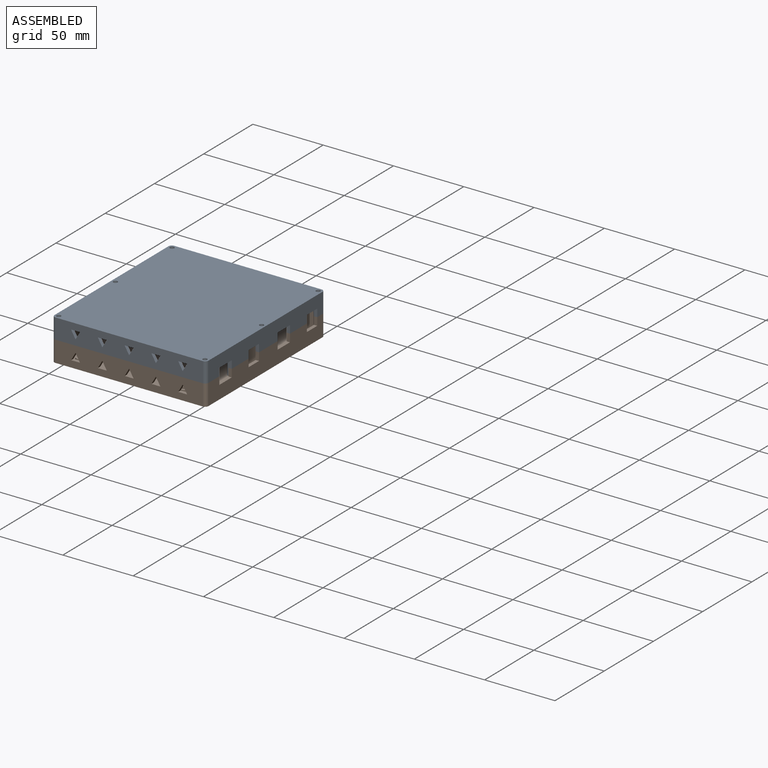
[diagram: assembled view]
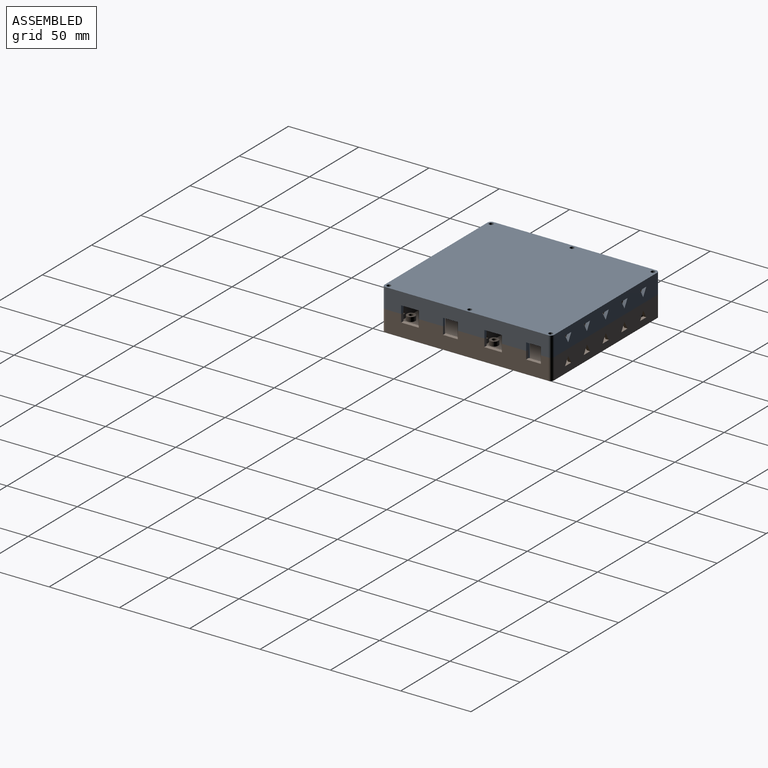
[diagram: assembled view, second angle]
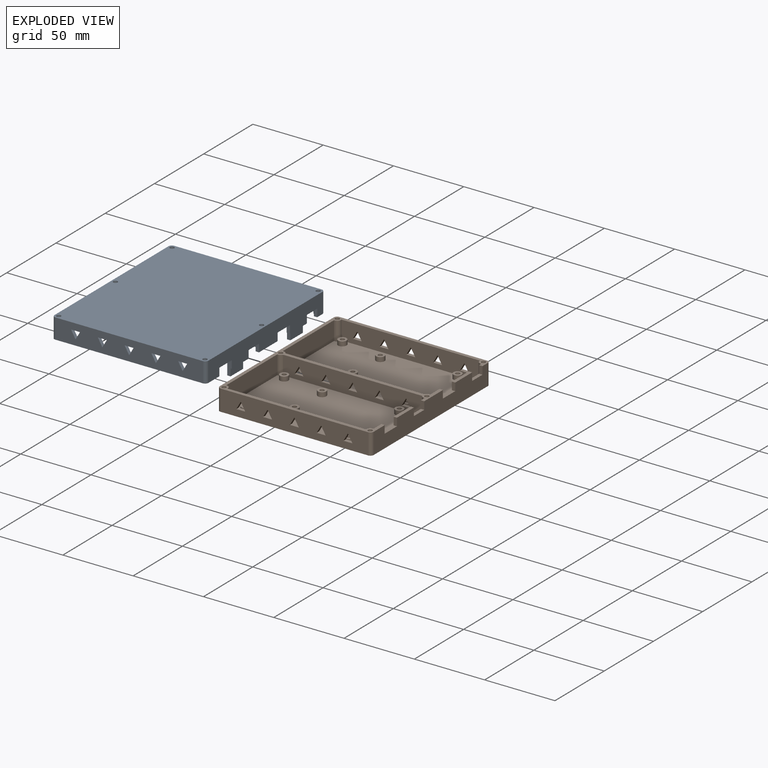
[diagram: exploded view]
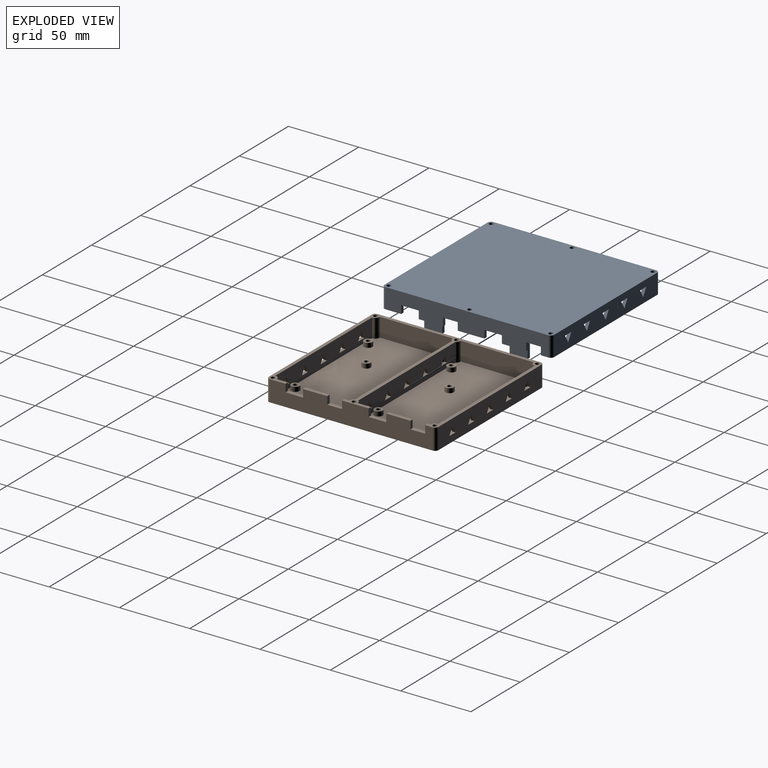
[diagram: exploded view, second angle]
ASSEMBLY  parts=2 mates=3
PART A: 137 faces, bbox 109.5x120.6x20.6 mm
  f0: plane 25.93x12.7mm, normal (-1,0,0), area 260.3mm2, adj f1,f10,f59,f60,f61,f73,f77,f133
  f1: plane 104.78x56.72mm, normal (0,0,1), area 5803.9mm2, adj f0,f7,f8,f46,f48,f50,f66,f67
  f2: plane 22.71x12.7mm, normal (-1,0,0), area 219.3mm2, adj f3,f14,f21,f25,f28,f29,f30,f129
  f3: plane 104.78x56.72mm, normal (0,0,1), area 5803.9mm2, adj f2,f5,f6,f13,f16,f17,f18,f19
  f4: plane 104.78x14.29mm, normal (0,1,0), area 1409.7mm2, adj f11,f25,f26,f27,f112,f113,f114,f115
  f5: plane 98.43x12.7mm, normal (0,-1,0), area 1162.7mm2, adj f3,f18,f19,f25,f112,f113,f114,f115
  f6: plane 98.98x12.7mm, normal (0,1,0), area 1169.7mm2, adj f3,f10,f76,f78,f97,f98,f99,f100
  f7: plane 98.43x12.7mm, normal (0,1,0), area 1162.7mm2, adj f1,f68,f69,f75,f82,f83,f84,f85
  f8: plane 98.98x12.7mm, normal (0,-1,0), area 1169.7mm2, adj f1,f10,f77,f79,f97,f98,f99,f100
  f9: plane 104.78x14.29mm, normal (0,-1,0), area 1409.7mm2, adj f11,f62,f63,f75,f82,f83,f84,f85
  f10: plane 109.54x22.86mm, normal (0,0,1), area 347.9mm2, adj f0,f6,f8,f12,f13,f15,f22,f31
  f11: plane 120.62x109.54mm, normal (0,0,-1), area 13164.6mm2, adj f4,f9,f12,f15,f23,f24,f26,f27
  f12: plane 115.85x14.29mm, normal (-1,0,0), area 759.9mm2, adj f10,f11,f25,f27,f34,f35,f36,f37
  f13: plane 52x12.7mm, normal (1,0,0), area 212.7mm2, adj f3,f10,f16,f25,f34,f35,f36,f37
  f14: plane 17.21x2.38mm, normal (0,0,1), area 41mm2, adj f2,f15,f22,f28,f32,f127
  f15: plane 115.85x14.29mm, normal (1,0,0), area 1401.1mm2, adj f10,f11,f14,f25,f26,f28,f29,f30
  f16: plane 12.7x0.4mm, normal (0,-1,0), area 5mm2, adj f3,f13,f17,f25
  f17: cylinder r=2.78mm len=12.7mm, axis (0,0,-1), area 55.4mm2, adj f3,f16,f18,f25
  f18: plane 12.7x0.4mm, normal (1,0,0), area 5mm2, adj f3,f5,f17,f25
  f19: plane 12.7x0.4mm, normal (-1,0,0), area 5mm2, adj f3,f5,f20,f25
  f20: cylinder r=2.78mm len=12.7mm, axis (0,0,-1), area 55.4mm2, adj f3,f19,f21,f25
  f21: plane 12.7x0.4mm, normal (0,-1,0), area 5mm2, adj f2,f3,f20,f25
  f22: plane 16.59x12.7mm, normal (-1,0,0), area 152.7mm2, adj f3,f10,f14,f31,f32,f33,f78,f128
  f23: cylinder r=1.5mm len=14.29mm, axis (0,0,-1), area 134.7mm2, adj f11,f25
  f24: cylinder r=1.5mm len=14.29mm, axis (0,0,-1), area 134.7mm2, adj f11,f25
  f25: plane 109.54x13.51mm, normal (0,0,1), area 309.8mm2, adj f2,f4,f5,f12,f13,f15,f16,f17
  f26: cylinder r=2.38mm len=14.29mm, axis (0,0,1), area 53.4mm2, adj f4,f11,f15,f25
  f27: cylinder r=2.38mm len=14.29mm, axis (0,0,-1), area 53.4mm2, adj f4,f11,f12,f25
  f28: plane 5.52x2.38mm, normal (0,1,0), area 13.2mm2, adj f2,f14,f15,f30
  f29: plane 5.52x2.38mm, normal (0,-1,0), area 13.2mm2, adj f2,f15,f25,f30
  f30: plane 12.5x2.38mm, normal (0,0,1), area 29.8mm2, adj f2,f15,f28,f29
  f31: plane 5.52x2.38mm, normal (0,1,0), area 13.2mm2, adj f10,f15,f22,f33
  f32: plane 5.52x2.38mm, normal (0,-1,0), area 13.2mm2, adj f14,f15,f22,f33
  f33: plane 10.5x2.38mm, normal (0,0,1), area 25mm2, adj f15,f22,f31,f32
  f34: plane 10.8x2.38mm, normal (0,-0.98,-0.17), area 26.1mm2, adj f12,f13,f25,f35
  f35: plane 41.91x2.38mm, normal (0,0,1), area 99.8mm2, adj f12,f13,f34,f36
  f36: plane 10.8x2.38mm, normal (0,0.98,-0.17), area 26.1mm2, adj f10,f12,f13,f35
  f37: cylinder r=1.59mm len=3.18mm, axis (-1,0,0), area 23.8mm2, adj f12,f13
  f38: cylinder r=1.59mm len=3.18mm, axis (-1,0,0), area 23.8mm2, adj f12,f13
  f39: cylinder r=3mm len=6mm, axis (0,0,-1), area 59.8mm2, adj f3,f40
  f40: plane 6x6mm, normal (0,0,1), area 28.3mm2, adj f39
  f41: cylinder r=3mm len=6mm, axis (0,0,-1), area 59.8mm2, adj f3,f42
  f42: plane 6x6mm, normal (0,0,1), area 28.3mm2, adj f41
  f43: cylinder r=3mm len=6mm, axis (0,0,-1), area 59.8mm2, adj f3,f44
  f44: plane 6x6mm, normal (0,0,1), area 28.3mm2, adj f43
  f45: plane 6x6mm, normal (0,0,1), area 28.3mm2, adj f46
  f46: cylinder r=3mm len=6mm, axis (0,0,-1), area 59.8mm2, adj f1,f45
  f47: plane 6x6mm, normal (0,0,1), area 28.3mm2, adj f48
  f48: cylinder r=3mm len=6mm, axis (0,0,-1), area 59.8mm2, adj f1,f47
  f49: plane 6x6mm, normal (0,0,1), area 28.3mm2, adj f50
  f50: cylinder r=3mm len=6mm, axis (0,0,-1), area 59.8mm2, adj f1,f49
  f51: cylinder r=1.59mm len=3.18mm, axis (-1,0,0), area 23.8mm2, adj f12,f74
  f52: cylinder r=1.59mm len=3.18mm, axis (-1,0,0), area 23.8mm2, adj f12,f74
  f53: plane 10.8x2.38mm, normal (0,0.98,-0.17), area 26.1mm2, adj f12,f54,f74,f75
  f54: plane 41.91x2.38mm, normal (0,0,1), area 99.8mm2, adj f12,f53,f55,f74
  f55: plane 10.8x2.38mm, normal (0,-0.98,-0.17), area 26.1mm2, adj f10,f12,f54,f74
  f56: plane 10.5x2.38mm, normal (0,0,1), area 25mm2, adj f15,f57,f58,f72
  f57: plane 5.52x2.38mm, normal (0,-1,0), area 13.2mm2, adj f15,f56,f72,f73
  f58: plane 5.52x2.38mm, normal (0,1,0), area 13.2mm2, adj f15,f56,f72,f75
  f59: plane 12.5x2.38mm, normal (0,0,1), area 29.8mm2, adj f0,f15,f60,f61
  f60: plane 5.52x2.38mm, normal (0,-1,0), area 13.2mm2, adj f0,f10,f15,f59
  f61: plane 5.52x2.38mm, normal (0,1,0), area 13.2mm2, adj f0,f15,f59,f73
  f62: cylinder r=2.38mm len=14.29mm, axis (0,0,1), area 53.4mm2, adj f9,f11,f12,f75
  f63: cylinder r=2.38mm len=14.29mm, axis (0,0,-1), area 53.4mm2, adj f9,f11,f15,f75
  f64: cylinder r=1.5mm len=14.29mm, axis (0,0,-1), area 134.7mm2, adj f11,f75
  f65: cylinder r=1.5mm len=14.29mm, axis (0,0,-1), area 134.7mm2, adj f11,f75
  f66: plane 12.7x0.4mm, normal (0,1,0), area 5mm2, adj f1,f67,f74,f75
  f67: cylinder r=2.78mm len=12.7mm, axis (0,0,-1), area 55.4mm2, adj f1,f66,f68,f75
  f68: plane 12.7x0.4mm, normal (1,0,0), area 5mm2, adj f1,f7,f67,f75
  f69: plane 12.7x0.4mm, normal (-1,0,0), area 5mm2, adj f1,f7,f70,f75
  f70: cylinder r=2.78mm len=12.7mm, axis (0,0,-1), area 55.4mm2, adj f1,f69,f71,f75
  f71: plane 12.7x0.4mm, normal (0,1,0), area 5mm2, adj f1,f70,f72,f75
  f72: plane 13.37x12.7mm, normal (-1,0,0), area 111.8mm2, adj f1,f56,f57,f58,f71,f73,f75,f135
  f73: plane 17.21x2.38mm, normal (0,0,1), area 41mm2, adj f0,f15,f57,f61,f72,f132
  f74: plane 52x12.7mm, normal (1,0,0), area 212.7mm2, adj f1,f10,f51,f52,f53,f54,f55,f66
  f75: plane 109.54x11.69mm, normal (0,0,1), area 296.1mm2, adj f7,f9,f12,f15,f53,f58,f62,f63
  f76: cylinder r=2.78mm len=12.7mm, axis (0,0,1), area 44.6mm2, adj f3,f6,f10,f13
  f77: cylinder r=2.78mm len=12.7mm, axis (0,0,1), area 44.6mm2, adj f0,f1,f8,f10
  f78: cylinder r=2.78mm len=12.7mm, axis (0,0,1), area 44.6mm2, adj f3,f6,f10,f22
  f79: cylinder r=2.78mm len=12.7mm, axis (0,0,1), area 44.6mm2, adj f1,f8,f10,f74
  f80: cylinder r=1.5mm len=14.29mm, axis (0,0,1), area 134.7mm2, adj f10,f11
  f81: cylinder r=1.5mm len=14.29mm, axis (0,0,1), area 134.7mm2, adj f10,f11
  f82: plane 5.5x3.18mm, normal (-0.87,0,-0.5), area 15.1mm2, adj f7,f9,f83,f84
  f83: plane 5.5x3.18mm, normal (0.87,0,-0.5), area 15.1mm2, adj f7,f9,f82,f84
  f84: plane 6.35x2.38mm, normal (0,0,1), area 15.1mm2, adj f7,f9,f82,f83
  f85: plane 5.5x3.18mm, normal (-0.87,0,-0.5), area 15.1mm2, adj f7,f9,f86,f87
  f86: plane 5.5x3.18mm, normal (0.87,0,-0.5), area 15.1mm2, adj f7,f9,f85,f87
  f87: plane 6.35x2.38mm, normal (0,0,1), area 15.1mm2, adj f7,f9,f85,f86
  f88: plane 5.5x3.18mm, normal (-0.87,0,-0.5), area 15.1mm2, adj f7,f9,f89,f90
  f89: plane 5.5x3.18mm, normal (0.87,0,-0.5), area 15.1mm2, adj f7,f9,f88,f90
  f90: plane 6.35x2.38mm, normal (0,0,1), area 15.1mm2, adj f7,f9,f88,f89
  f91: plane 5.5x3.18mm, normal (-0.87,0,-0.5), area 15.1mm2, adj f7,f9,f92,f93
  f92: plane 5.5x3.18mm, normal (0.87,0,-0.5), area 15.1mm2, adj f7,f9,f91,f93
  f93: plane 6.35x2.38mm, normal (0,0,1), area 15.1mm2, adj f7,f9,f91,f92
  f94: plane 5.5x3.18mm, normal (-0.87,0,-0.5), area 15.1mm2, adj f7,f9,f95,f96
  f95: plane 5.5x3.18mm, normal (0.87,0,-0.5), area 15.1mm2, adj f7,f9,f94,f96
  f96: plane 6.35x2.38mm, normal (0,0,1), area 15.1mm2, adj f7,f9,f94,f95
  f97: plane 5.5x3.18mm, normal (-0.87,0,-0.5), area 15.3mm2, adj f6,f8,f98,f99
  f98: plane 5.5x3.18mm, normal (0.87,0,-0.5), area 15.3mm2, adj f6,f8,f97,f99
  f99: plane 6.35x2.42mm, normal (0,0,1), area 15.3mm2, adj f6,f8,f97,f98
  f100: plane 5.5x3.18mm, normal (-0.87,0,-0.5), area 15.3mm2, adj f6,f8,f101,f102
  f101: plane 5.5x3.18mm, normal (0.87,0,-0.5), area 15.3mm2, adj f6,f8,f100,f102
  f102: plane 6.35x2.42mm, normal (0,0,1), area 15.3mm2, adj f6,f8,f100,f101
  f103: plane 5.5x3.18mm, normal (-0.87,0,-0.5), area 15.3mm2, adj f6,f8,f104,f105
  f104: plane 5.5x3.18mm, normal (0.87,0,-0.5), area 15.3mm2, adj f6,f8,f103,f105
  f105: plane 6.35x2.42mm, normal (0,0,1), area 15.3mm2, adj f6,f8,f103,f104
  f106: plane 5.5x3.18mm, normal (-0.87,0,-0.5), area 15.3mm2, adj f6,f8,f107,f108
  f107: plane 5.5x3.18mm, normal (0.87,0,-0.5), area 15.3mm2, adj f6,f8,f106,f108
  f108: plane 6.35x2.42mm, normal (0,0,1), area 15.3mm2, adj f6,f8,f106,f107
  f109: plane 5.5x3.18mm, normal (-0.87,0,-0.5), area 15.3mm2, adj f6,f8,f110,f111
  f110: plane 5.5x3.18mm, normal (0.87,0,-0.5), area 15.3mm2, adj f6,f8,f109,f111
  f111: plane 6.35x2.42mm, normal (0,0,1), area 15.3mm2, adj f6,f8,f109,f110
  f112: plane 6.35x2.38mm, normal (0,0,1), area 15.1mm2, adj f4,f5,f113,f114
  f113: plane 5.5x3.18mm, normal (0.87,0,-0.5), area 15.1mm2, adj f4,f5,f112,f114
  f114: plane 5.5x3.18mm, normal (-0.87,0,-0.5), area 15.1mm2, adj f4,f5,f112,f113
  f115: plane 6.35x2.38mm, normal (0,0,1), area 15.1mm2, adj f4,f5,f116,f117
  f116: plane 5.5x3.18mm, normal (0.87,0,-0.5), area 15.1mm2, adj f4,f5,f115,f117
  f117: plane 5.5x3.18mm, normal (-0.87,0,-0.5), area 15.1mm2, adj f4,f5,f115,f116
  f118: plane 6.35x2.38mm, normal (0,0,1), area 15.1mm2, adj f4,f5,f119,f120
  f119: plane 5.5x3.18mm, normal (0.87,0,-0.5), area 15.1mm2, adj f4,f5,f118,f120
  f120: plane 5.5x3.18mm, normal (-0.87,0,-0.5), area 15.1mm2, adj f4,f5,f118,f119
  f121: plane 6.35x2.38mm, normal (0,0,1), area 15.1mm2, adj f4,f5,f122,f123
  f122: plane 5.5x3.18mm, normal (0.87,0,-0.5), area 15.1mm2, adj f4,f5,f121,f123
  f123: plane 5.5x3.18mm, normal (-0.87,0,-0.5), area 15.1mm2, adj f4,f5,f121,f122
  f124: plane 6.35x2.38mm, normal (0,0,1), area 15.1mm2, adj f4,f5,f125,f126
  f125: plane 5.5x3.18mm, normal (0.87,0,-0.5), area 15.1mm2, adj f4,f5,f124,f126
  f126: plane 5.5x3.18mm, normal (-0.87,0,-0.5), area 15.1mm2, adj f4,f5,f124,f125
  f127: plane 12.7x6.35mm, normal (1,0,0), area 80.6mm2, adj f14,f128,f129,f131
  f128: plane 19.05x2.38mm, normal (0,-1,0), area 45.4mm2, adj f3,f22,f127,f130,f131
  f129: plane 19.05x2.38mm, normal (0,1,0), area 45.4mm2, adj f2,f3,f127,f130,f131
  f130: plane 19.05x12.7mm, normal (-1,0,0), area 241.9mm2, adj f3,f128,f129,f131
  f131: plane 12.7x2.38mm, normal (0,0,1), area 30.2mm2, adj f127,f128,f129,f130
  f132: plane 12.7x6.35mm, normal (1,0,0), area 80.6mm2, adj f73,f133,f135,f136
  f133: plane 19.05x2.38mm, normal (0,1,0), area 45.4mm2, adj f0,f1,f132,f134,f136
  f134: plane 19.05x12.7mm, normal (-1,0,0), area 241.9mm2, adj f1,f133,f135,f136
  f135: plane 19.05x2.38mm, normal (0,-1,0), area 45.4mm2, adj f1,f72,f132,f134,f136
  f136: plane 12.7x2.38mm, normal (0,0,1), area 30.2mm2, adj f132,f133,f134,f135
PART B: 149 faces, bbox 109.5x120.6x14.9 mm
  f0: plane 104.78x14.92mm, normal (0,1,0), area 1476.2mm2, adj f6,f7,f22,f23,f134,f135,f136,f137
  f1: plane 98.43x13.34mm, normal (0,-1,0), area 1225.2mm2, adj f6,f8,f14,f15,f134,f135,f136,f137
  f2: plane 98.98x13.34mm, normal (0,1,0), area 1232.6mm2, adj f6,f8,f98,f101,f119,f120,f121,f122
  f3: plane 98.43x13.34mm, normal (0,1,0), area 1225.2mm2, adj f6,f86,f92,f93,f104,f105,f106,f107
  f4: plane 98.98x13.34mm, normal (0,-1,0), area 1232.6mm2, adj f6,f86,f99,f100,f119,f120,f121,f122
  f5: plane 104.78x14.92mm, normal (0,-1,0), area 1476.2mm2, adj f6,f7,f84,f85,f104,f105,f106,f107
  f6: plane 120.62x109.54mm, normal (0,0,1), area 1135.2mm2, adj f0,f1,f2,f3,f4,f5,f10,f11
  f7: plane 120.62x109.54mm, normal (0,0,-1), area 13164.6mm2, adj f0,f5,f10,f11,f20,f21,f22,f23
  f8: plane 104.78x56.72mm, normal (0,0,1), area 5749.3mm2, adj f1,f2,f12,f13,f14,f15,f16,f17
  f9: plane 17.21x2.38mm, normal (0,0,1), area 41mm2, adj f10,f18,f24,f28
  f10: plane 115.85x14.92mm, normal (1,0,0), area 1474.7mm2, adj f6,f7,f9,f22,f24,f25,f26,f27
  f11: plane 115.85x14.92mm, normal (-1,0,0), area 1728.8mm2, adj f6,f7,f23,f84
  f12: plane 13.34x0.4mm, normal (0,-1,0), area 5.3mm2, adj f6,f8,f13,f19
  f13: cylinder r=2.78mm len=13.34mm, axis (0,0,-1), area 58.2mm2, adj f6,f8,f12,f14
  f14: plane 13.34x0.4mm, normal (1,0,0), area 5.3mm2, adj f1,f6,f8,f13
  f15: plane 13.34x0.4mm, normal (-1,0,0), area 5.3mm2, adj f1,f6,f8,f16
  f16: cylinder r=2.78mm len=13.34mm, axis (0,0,-1), area 58.2mm2, adj f6,f8,f15,f17
  f17: plane 13.34x0.4mm, normal (0,-1,0), area 5.3mm2, adj f6,f8,f16,f18
  f18: plane 52x13.34mm, normal (-1,0,0), area 566.4mm2, adj f6,f8,f9,f17,f24,f25,f26,f27
  f19: plane 52x13.34mm, normal (1,0,0), area 693.4mm2, adj f6,f8,f12,f98
  f20: cylinder r=1.5mm len=14.92mm, axis (0,0,-1), area 140.6mm2, adj f6,f7
  f21: cylinder r=1.5mm len=14.92mm, axis (0,0,-1), area 140.6mm2, adj f6,f7
  f22: cylinder r=2.38mm len=14.92mm, axis (0,0,1), area 55.8mm2, adj f0,f6,f7,f10
  f23: cylinder r=2.38mm len=14.92mm, axis (0,0,-1), area 55.8mm2, adj f0,f6,f7,f11
  f24: plane 5.52x2.38mm, normal (0,1,0), area 13.2mm2, adj f9,f10,f18,f26
  f25: plane 5.52x2.38mm, normal (0,-1,0), area 13.2mm2, adj f6,f10,f18,f26
  f26: plane 10.5x2.38mm, normal (0,0,1), area 25mm2, adj f10,f18,f24,f25
  f27: plane 5.52x2.38mm, normal (0,1,0), area 13.2mm2, adj f6,f10,f18,f29
  f28: plane 5.52x2.38mm, normal (0,-1,0), area 13.2mm2, adj f9,f10,f18,f29
  f29: plane 12.5x2.38mm, normal (0,0,1), area 29.8mm2, adj f10,f18,f27,f28
  f30: cylinder r=1.5mm len=3.18mm, axis (0,0,-1), area 29.9mm2, adj f32,f33
  f31: cylinder r=3mm len=6mm, axis (0,0,-1), area 59.8mm2, adj f8,f32
  f32: plane 6x6mm, normal (0,0,1), area 21.2mm2, adj f30,f31
  f33: plane 3x3mm, normal (0,0,1), area 7.1mm2, adj f30
  f34: cylinder r=1.5mm len=3.18mm, axis (0,0,-1), area 29.9mm2, adj f36,f37
  f35: cylinder r=3mm len=6mm, axis (0,0,-1), area 59.8mm2, adj f8,f36
  f36: plane 6x6mm, normal (0,0,1), area 21.2mm2, adj f34,f35
  f37: plane 3x3mm, normal (0,0,1), area 7.1mm2, adj f34
  f38: cylinder r=1.5mm len=3.18mm, axis (0,0,-1), area 29.9mm2, adj f40,f41
  f39: cylinder r=3mm len=6mm, axis (0,0,-1), area 59.8mm2, adj f8,f40
  f40: plane 6x6mm, normal (0,0,1), area 21.2mm2, adj f38,f39
  f41: plane 3x3mm, normal (0,0,1), area 7.1mm2, adj f38
  f42: cylinder r=1.5mm len=3.18mm, axis (0,0,-1), area 29.9mm2, adj f44,f45
  f43: cylinder r=3mm len=6mm, axis (0,0,-1), area 59.8mm2, adj f8,f44
  f44: plane 6x6mm, normal (0,0,1), area 21.2mm2, adj f42,f43
  f45: plane 3x3mm, normal (0,0,1), area 7.1mm2, adj f42
  f46: cylinder r=1.5mm len=3.18mm, axis (0,0,-1), area 29.9mm2, adj f48,f49
  f47: cylinder r=3mm len=6mm, axis (0,0,-1), area 59.8mm2, adj f8,f48
  f48: plane 6x6mm, normal (0,0,1), area 21.2mm2, adj f46,f47
  f49: plane 3x3mm, normal (0,0,1), area 7.1mm2, adj f46
  f50: cylinder r=1.5mm len=3.18mm, axis (0,0,-1), area 29.9mm2, adj f52,f53
  f51: cylinder r=3mm len=6mm, axis (0,0,-1), area 59.8mm2, adj f8,f52
  f52: plane 6x6mm, normal (0,0,1), area 21.2mm2, adj f50,f51
  f53: plane 3x3mm, normal (0,0,1), area 7.1mm2, adj f50
  f54: plane 3x3mm, normal (0,0,1), area 7.1mm2, adj f57
  f55: plane 6x6mm, normal (0,0,1), area 21.2mm2, adj f56,f57
  f56: cylinder r=3mm len=6mm, axis (0,0,-1), area 59.8mm2, adj f55,f86
  f57: cylinder r=1.5mm len=3.18mm, axis (0,0,-1), area 29.9mm2, adj f54,f55
  f58: plane 3x3mm, normal (0,0,1), area 7.1mm2, adj f61
  f59: plane 6x6mm, normal (0,0,1), area 21.2mm2, adj f60,f61
  f60: cylinder r=3mm len=6mm, axis (0,0,-1), area 59.8mm2, adj f59,f86
  f61: cylinder r=1.5mm len=3.18mm, axis (0,0,-1), area 29.9mm2, adj f58,f59
  f62: plane 3x3mm, normal (0,0,1), area 7.1mm2, adj f65
  f63: plane 6x6mm, normal (0,0,1), area 21.2mm2, adj f64,f65
  f64: cylinder r=3mm len=6mm, axis (0,0,-1), area 59.8mm2, adj f63,f86
  f65: cylinder r=1.5mm len=3.18mm, axis (0,0,-1), area 29.9mm2, adj f62,f63
  f66: plane 3x3mm, normal (0,0,1), area 7.1mm2, adj f69
  f67: plane 6x6mm, normal (0,0,1), area 21.2mm2, adj f68,f69
  f68: cylinder r=3mm len=6mm, axis (0,0,-1), area 59.8mm2, adj f67,f86
  f69: cylinder r=1.5mm len=3.18mm, axis (0,0,-1), area 29.9mm2, adj f66,f67
  f70: plane 3x3mm, normal (0,0,1), area 7.1mm2, adj f73
  f71: plane 6x6mm, normal (0,0,1), area 21.2mm2, adj f72,f73
  f72: cylinder r=3mm len=6mm, axis (0,0,-1), area 59.8mm2, adj f71,f86
  f73: cylinder r=1.5mm len=3.18mm, axis (0,0,-1), area 29.9mm2, adj f70,f71
  f74: plane 3x3mm, normal (0,0,1), area 7.1mm2, adj f77
  f75: plane 6x6mm, normal (0,0,1), area 21.2mm2, adj f76,f77
  f76: cylinder r=3mm len=6mm, axis (0,0,-1), area 59.8mm2, adj f75,f86
  f77: cylinder r=1.5mm len=3.18mm, axis (0,0,-1), area 29.9mm2, adj f74,f75
  f78: plane 12.5x2.38mm, normal (0,0,1), area 29.8mm2, adj f10,f79,f80,f96
  f79: plane 5.52x2.38mm, normal (0,-1,0), area 13.2mm2, adj f10,f78,f96,f97
  f80: plane 5.52x2.38mm, normal (0,1,0), area 13.2mm2, adj f6,f10,f78,f96
  f81: plane 10.5x2.38mm, normal (0,0,1), area 25mm2, adj f10,f82,f83,f96
  f82: plane 5.52x2.38mm, normal (0,-1,0), area 13.2mm2, adj f6,f10,f81,f96
  f83: plane 5.52x2.38mm, normal (0,1,0), area 13.2mm2, adj f10,f81,f96,f97
  f84: cylinder r=2.38mm len=14.92mm, axis (0,0,1), area 55.8mm2, adj f5,f6,f7,f11
  f85: cylinder r=2.38mm len=14.92mm, axis (0,0,-1), area 55.8mm2, adj f5,f6,f7,f10
  f86: plane 104.78x56.72mm, normal (0,0,1), area 5749.3mm2, adj f3,f4,f56,f60,f64,f68,f72,f76
  f87: cylinder r=1.5mm len=14.92mm, axis (0,0,-1), area 140.6mm2, adj f6,f7
  f88: cylinder r=1.5mm len=14.92mm, axis (0,0,-1), area 140.6mm2, adj f6,f7
  f89: plane 52x13.34mm, normal (1,0,0), area 693.4mm2, adj f6,f86,f90,f99
  f90: plane 13.34x0.4mm, normal (0,1,0), area 5.3mm2, adj f6,f86,f89,f91
  f91: cylinder r=2.78mm len=13.34mm, axis (0,0,-1), area 58.2mm2, adj f6,f86,f90,f92
  f92: plane 13.34x0.4mm, normal (1,0,0), area 5.3mm2, adj f3,f6,f86,f91
  f93: plane 13.34x0.4mm, normal (-1,0,0), area 5.3mm2, adj f3,f6,f86,f94
  f94: cylinder r=2.78mm len=13.34mm, axis (0,0,-1), area 58.2mm2, adj f6,f86,f93,f95
  f95: plane 13.34x0.4mm, normal (0,1,0), area 5.3mm2, adj f6,f86,f94,f96
  f96: plane 52x13.34mm, normal (-1,0,0), area 566.4mm2, adj f6,f78,f79,f80,f81,f82,f83,f86
  f97: plane 17.21x2.38mm, normal (0,0,1), area 41mm2, adj f10,f79,f83,f96
  f98: cylinder r=2.78mm len=13.34mm, axis (0,0,1), area 46.8mm2, adj f2,f6,f8,f19
  f99: cylinder r=2.78mm len=13.34mm, axis (0,0,1), area 46.8mm2, adj f4,f6,f86,f89
  f100: cylinder r=2.78mm len=13.34mm, axis (0,0,1), area 46.8mm2, adj f4,f6,f86,f96
  f101: cylinder r=2.78mm len=13.34mm, axis (0,0,1), area 46.8mm2, adj f2,f6,f8,f18
  f102: cylinder r=1.5mm len=14.92mm, axis (0,0,1), area 140.6mm2, adj f6,f7
  f103: cylinder r=1.5mm len=14.92mm, axis (0,0,1), area 140.6mm2, adj f6,f7
  f104: plane 5.5x3.18mm, normal (-0.87,0,-0.5), area 15.1mm2, adj f3,f5,f105,f106
  f105: plane 5.5x3.18mm, normal (0.87,0,-0.5), area 15.1mm2, adj f3,f5,f104,f106
  f106: plane 6.35x2.38mm, normal (0,0,1), area 15.1mm2, adj f3,f5,f104,f105
  f107: plane 5.5x3.18mm, normal (0.87,0,-0.5), area 15.1mm2, adj f3,f5,f108,f109
  f108: plane 6.35x2.38mm, normal (0,0,1), area 15.1mm2, adj f3,f5,f107,f109
  f109: plane 5.5x3.18mm, normal (-0.87,0,-0.5), area 15.1mm2, adj f3,f5,f107,f108
  f110: plane 5.5x3.18mm, normal (0.87,0,-0.5), area 15.1mm2, adj f3,f5,f111,f112
  f111: plane 6.35x2.38mm, normal (0,0,1), area 15.1mm2, adj f3,f5,f110,f112
  f112: plane 5.5x3.18mm, normal (-0.87,0,-0.5), area 15.1mm2, adj f3,f5,f110,f111
  f113: plane 5.5x3.18mm, normal (-0.87,0,-0.5), area 15.1mm2, adj f3,f5,f114,f115
  f114: plane 5.5x3.18mm, normal (0.87,0,-0.5), area 15.1mm2, adj f3,f5,f113,f115
  f115: plane 6.35x2.38mm, normal (0,0,1), area 15.1mm2, adj f3,f5,f113,f114
  f116: plane 5.5x3.18mm, normal (-0.87,0,-0.5), area 15.1mm2, adj f3,f5,f117,f118
  f117: plane 5.5x3.18mm, normal (0.87,0,-0.5), area 15.1mm2, adj f3,f5,f116,f118
  f118: plane 6.35x2.38mm, normal (0,0,1), area 15.1mm2, adj f3,f5,f116,f117
  f119: plane 5.5x3.18mm, normal (-0.87,0,-0.5), area 15.3mm2, adj f2,f4,f120,f121
  f120: plane 5.5x3.18mm, normal (0.87,0,-0.5), area 15.3mm2, adj f2,f4,f119,f121
  f121: plane 6.35x2.42mm, normal (0,0,1), area 15.3mm2, adj f2,f4,f119,f120
  f122: plane 5.5x3.18mm, normal (0.87,0,-0.5), area 15.3mm2, adj f2,f4,f123,f124
  f123: plane 6.35x2.42mm, normal (0,0,1), area 15.3mm2, adj f2,f4,f122,f124
  f124: plane 5.5x3.18mm, normal (-0.87,0,-0.5), area 15.3mm2, adj f2,f4,f122,f123
  f125: plane 5.5x3.18mm, normal (0.87,0,-0.5), area 15.3mm2, adj f2,f4,f126,f127
  f126: plane 6.35x2.42mm, normal (0,0,1), area 15.3mm2, adj f2,f4,f125,f127
  f127: plane 5.5x3.18mm, normal (-0.87,0,-0.5), area 15.3mm2, adj f2,f4,f125,f126
  f128: plane 5.5x3.18mm, normal (-0.87,0,-0.5), area 15.3mm2, adj f2,f4,f129,f130
  f129: plane 5.5x3.18mm, normal (0.87,0,-0.5), area 15.3mm2, adj f2,f4,f128,f130
  f130: plane 6.35x2.42mm, normal (0,0,1), area 15.3mm2, adj f2,f4,f128,f129
  f131: plane 5.5x3.18mm, normal (-0.87,0,-0.5), area 15.3mm2, adj f2,f4,f132,f133
  f132: plane 5.5x3.18mm, normal (0.87,0,-0.5), area 15.3mm2, adj f2,f4,f131,f133
  f133: plane 6.35x2.42mm, normal (0,0,1), area 15.3mm2, adj f2,f4,f131,f132
  f134: plane 6.35x2.38mm, normal (0,0,1), area 15.1mm2, adj f0,f1,f135,f136
  f135: plane 5.5x3.18mm, normal (0.87,0,-0.5), area 15.1mm2, adj f0,f1,f134,f136
  f136: plane 5.5x3.18mm, normal (-0.87,0,-0.5), area 15.1mm2, adj f0,f1,f134,f135
  f137: plane 5.5x3.18mm, normal (-0.87,0,-0.5), area 15.1mm2, adj f0,f1,f138,f139
  f138: plane 6.35x2.38mm, normal (0,0,1), area 15.1mm2, adj f0,f1,f137,f139
  f139: plane 5.5x3.18mm, normal (0.87,0,-0.5), area 15.1mm2, adj f0,f1,f137,f138
  f140: plane 5.5x3.18mm, normal (-0.87,0,-0.5), area 15.1mm2, adj f0,f1,f141,f142
  f141: plane 6.35x2.38mm, normal (0,0,1), area 15.1mm2, adj f0,f1,f140,f142
  f142: plane 5.5x3.18mm, normal (0.87,0,-0.5), area 15.1mm2, adj f0,f1,f140,f141
  f143: plane 6.35x2.38mm, normal (0,0,1), area 15.1mm2, adj f0,f1,f144,f145
  f144: plane 5.5x3.18mm, normal (0.87,0,-0.5), area 15.1mm2, adj f0,f1,f143,f145
  f145: plane 5.5x3.18mm, normal (-0.87,0,-0.5), area 15.1mm2, adj f0,f1,f143,f144
  f146: plane 6.35x2.38mm, normal (0,0,1), area 15.1mm2, adj f0,f1,f147,f148
  f147: plane 5.5x3.18mm, normal (0.87,0,-0.5), area 15.1mm2, adj f0,f1,f146,f148
  f148: plane 5.5x3.18mm, normal (-0.87,0,-0.5), area 15.1mm2, adj f0,f1,f146,f147
PLACE A rot(axis=(1,0,0),180deg) t=(0,-59.13,29.21)mm
PLACE B at identity fixed
MATE planar A.f12 <-> B.f11  axis (-1,0,0) through (-54.77,-29.57,24.03)mm
MATE planar A.f4 <-> B.f5  axis (0,-1,0) through (0,-89.87,14.92)mm
MATE planar A.f25 <-> B.f6  axis (0,0,-1) through (-49.21,-87.49,14.92)mm
